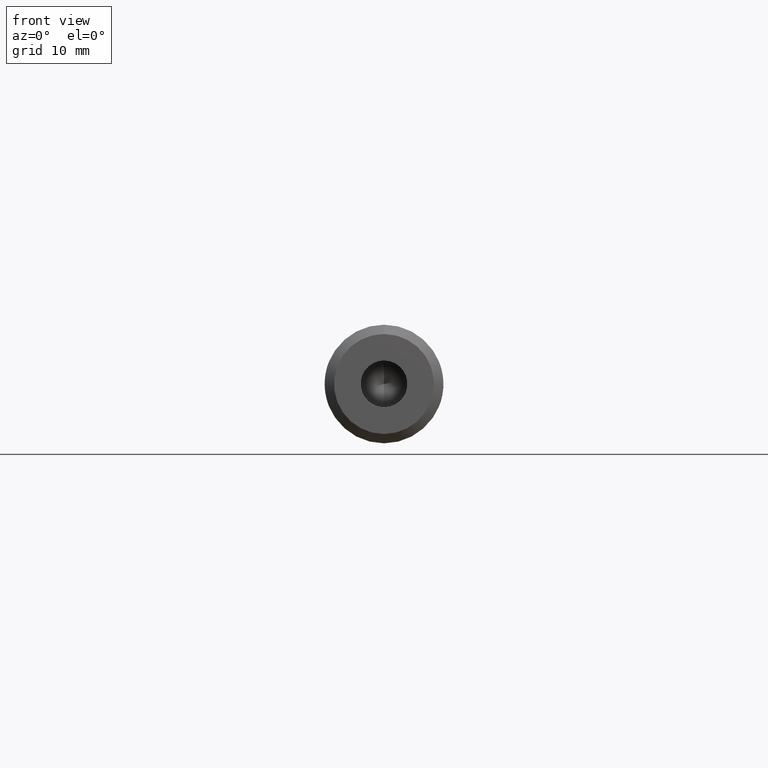
[diagram: clean part render]
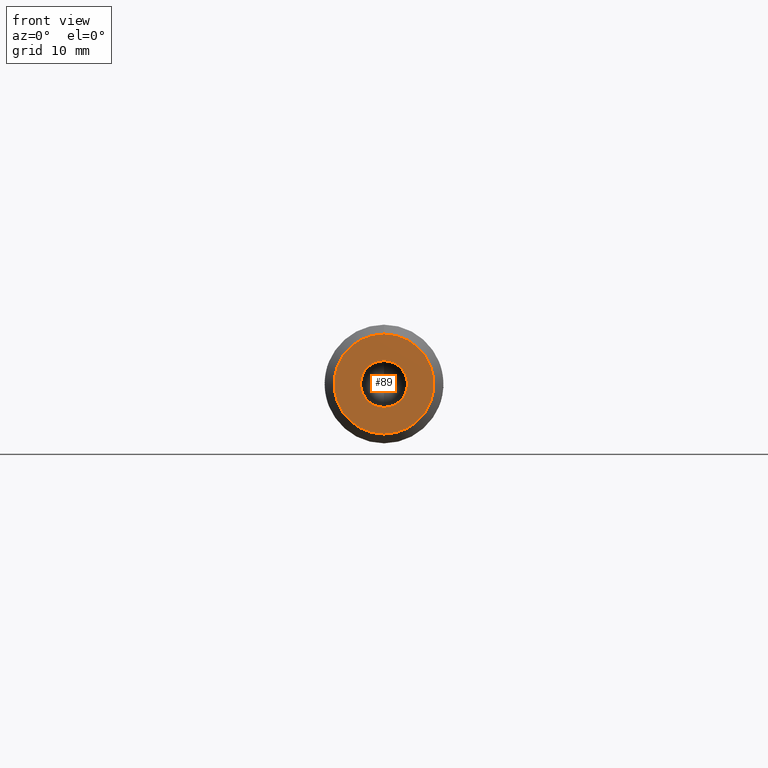
[diagram: same view with one face highlighted and labeled with its STEP entity id]
A machine part, front view. The second image highlights one B-rep face of the part: STEP entity #89.
In plain terms, the highlighted planar face has unit normal (0, 1, 0).
Its self-contained STEP definition (entity closure, byte-faithful):
#7 = AXIS2_PLACEMENT_3D ( 'NONE', #91, #958, #509 ) ;
#20 = DIRECTION ( 'NONE',  ( 0.0000000000000000000, 0.0000000000000000000, -1.000000000000000000 ) ) ;
#89 = ADVANCED_FACE ( 'NONE', ( #170, #204 ), #614, .F. ) ;
#91 = CARTESIAN_POINT ( 'NONE',  ( 0.0000000000000000000, 2.479909768273390800E-016, 0.0000000000000000000 ) ) ;
#150 = EDGE_LOOP ( 'NONE', ( #694, #962 ) ) ;
#166 = VERTEX_POINT ( 'NONE', #315 ) ;
#170 = FACE_BOUND ( 'NONE', #150, .T. ) ;
#178 = VERTEX_POINT ( 'NONE', #701 ) ;
#199 = DIRECTION ( 'NONE',  ( -0.0000000000000000000, -1.000000000000000000, -0.0000000000000000000 ) ) ;
#204 = FACE_OUTER_BOUND ( 'NONE', #943, .T. ) ;
#216 = ORIENTED_EDGE ( 'NONE', *, *, #467, .T. ) ;
#237 = AXIS2_PLACEMENT_3D ( 'NONE', #246, #871, #792 ) ;
#246 = CARTESIAN_POINT ( 'NONE',  ( 0.0000000000000000000, -8.673617379884035500E-016, 0.0000000000000000000 ) ) ;
#288 = DIRECTION ( 'NONE',  ( 0.0000000000000000000, 0.0000000000000000000, -1.000000000000000000 ) ) ;
#291 = AXIS2_PLACEMENT_3D ( 'NONE', #691, #1004, #628 ) ;
#296 = EDGE_CURVE ( 'NONE', #493, #166, #500, .T. ) ;
#315 = CARTESIAN_POINT ( 'NONE',  ( 7.164183775012015400E-016, -8.673617379884035500E-016, -5.349999999999999600 ) ) ;
#331 = DIRECTION ( 'NONE',  ( -0.0000000000000000000, -1.000000000000000000, -0.0000000000000000000 ) ) ;
#340 = AXIS2_PLACEMENT_3D ( 'NONE', #676, #199, #288 ) ;
#420 = CARTESIAN_POINT ( 'NONE',  ( 0.0000000000000000000, 2.479909768273390800E-016, -2.499999999999998700 ) ) ;
#447 = VERTEX_POINT ( 'NONE', #420 ) ;
#466 = CIRCLE ( 'NONE', #7, 2.499999999999998700 ) ;
#467 = EDGE_CURVE ( 'NONE', #166, #493, #516, .T. ) ;
#493 = VERTEX_POINT ( 'NONE', #893 ) ;
#500 = CIRCLE ( 'NONE', #237, 5.349999999999999600 ) ;
#505 = EDGE_CURVE ( 'NONE', #178, #447, #466, .T. ) ;
#509 = DIRECTION ( 'NONE',  ( 0.0000000000000000000, 0.0000000000000000000, -1.000000000000000000 ) ) ;
#511 = CARTESIAN_POINT ( 'NONE',  ( 0.0000000000000000000, -8.673617379884035500E-016, 0.0000000000000000000 ) ) ;
#516 = CIRCLE ( 'NONE', #553, 5.349999999999999600 ) ;
#553 = AXIS2_PLACEMENT_3D ( 'NONE', #511, #331, #20 ) ;
#611 = CIRCLE ( 'NONE', #340, 2.499999999999998700 ) ;
#614 = PLANE ( 'NONE',  #291 ) ;
#628 = DIRECTION ( 'NONE',  ( 0.0000000000000000000, -0.0000000000000000000, 1.000000000000000000 ) ) ;
#676 = CARTESIAN_POINT ( 'NONE',  ( 0.0000000000000000000, 2.479909768273390800E-016, 0.0000000000000000000 ) ) ;
#691 = CARTESIAN_POINT ( 'NONE',  ( 0.0000000000000000000, -3.275821996474859600E-016, 0.0000000000000000000 ) ) ;
#694 = ORIENTED_EDGE ( 'NONE', *, *, #924, .F. ) ;
#701 = CARTESIAN_POINT ( 'NONE',  ( 3.061616997868382200E-016, 2.479909768273390800E-016, 2.499999999999999100 ) ) ;
#792 = DIRECTION ( 'NONE',  ( 0.0000000000000000000, 0.0000000000000000000, -1.000000000000000000 ) ) ;
#871 = DIRECTION ( 'NONE',  ( -0.0000000000000000000, -1.000000000000000000, -0.0000000000000000000 ) ) ;
#893 = CARTESIAN_POINT ( 'NONE',  ( 0.0000000000000000000, -8.673617379884035500E-016, 5.349999999999999600 ) ) ;
#924 = EDGE_CURVE ( 'NONE', #447, #178, #611, .T. ) ;
#942 = ORIENTED_EDGE ( 'NONE', *, *, #296, .T. ) ;
#943 = EDGE_LOOP ( 'NONE', ( #942, #216 ) ) ;
#958 = DIRECTION ( 'NONE',  ( -0.0000000000000000000, -1.000000000000000000, -0.0000000000000000000 ) ) ;
#962 = ORIENTED_EDGE ( 'NONE', *, *, #505, .F. ) ;
#1004 = DIRECTION ( 'NONE',  ( 0.0000000000000000000, 1.000000000000000000, 0.0000000000000000000 ) ) ;